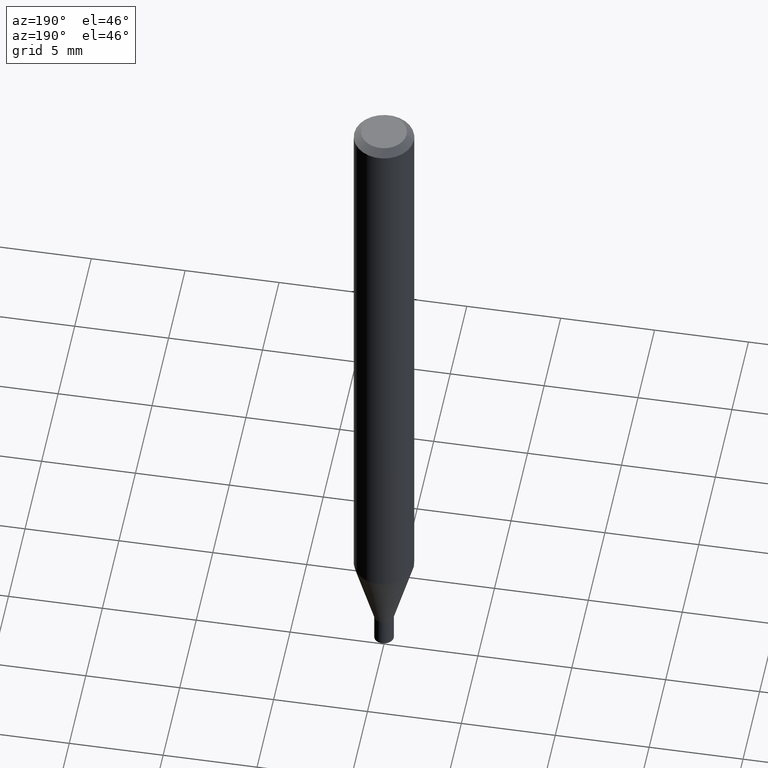
[diagram: clean part render]
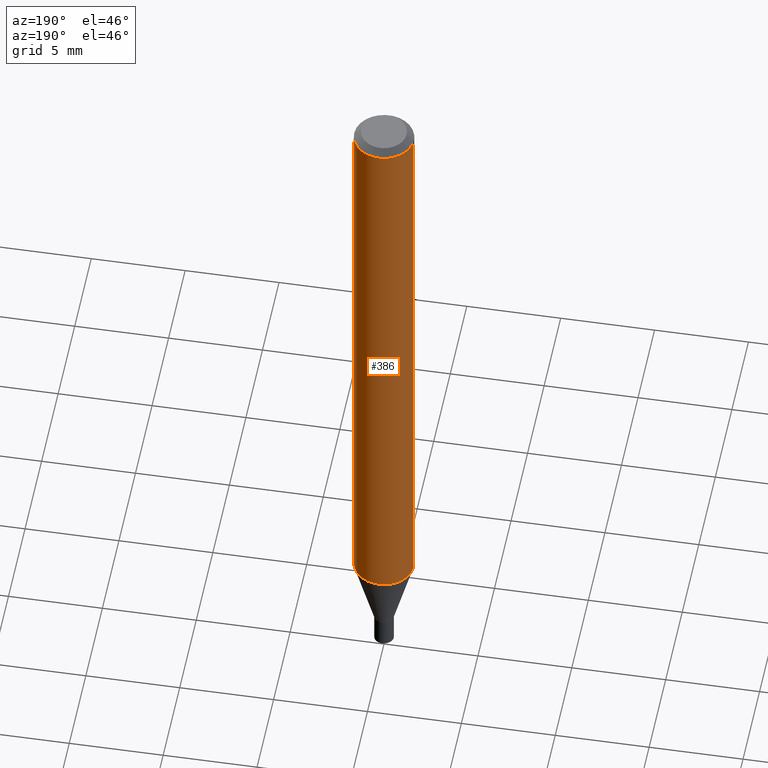
[diagram: same view with one face highlighted and labeled with its STEP entity id]
A machine part, auxiliary view. The second image highlights one B-rep face of the part: STEP entity #386.
In plain terms, the highlighted cylindrical surface (edge-blend (fillet) strip) has radius 1.5875 mm, axis along (-0, 0, 1).
Its self-contained STEP definition (entity closure, byte-faithful):
#5 = EDGE_CURVE ( 'NONE', #164, #210, #285, .T. ) ;
#7 = CARTESIAN_POINT ( 'NONE',  ( 0.06250000000000000000, -4.888073874380388472E-16, -0.01499999999999999944 ) ) ;
#14 = VECTOR ( 'NONE', #216, 39.37007874015748143 ) ;
#18 = VERTEX_POINT ( 'NONE', #46 ) ;
#28 = FACE_OUTER_BOUND ( 'NONE', #337, .T. ) ;
#44 = DIRECTION ( 'NONE',  ( 1.000000000000000000, -6.982962677686266711E-15, 0.000000000000000000 ) ) ;
#46 = CARTESIAN_POINT ( 'NONE',  ( -0.06250000000000000000, -1.819706752399126713E-15, -0.01499999999999999944 ) ) ;
#48 = AXIS2_PLACEMENT_3D ( 'NONE', #83, #261, #194 ) ;
#83 = CARTESIAN_POINT ( 'NONE',  ( 3.134489096710992229E-29, -4.475219704415731184E-15, -1.281753866082106397 ) ) ;
#110 = CYLINDRICAL_SURFACE ( 'NONE', #165, 0.06250000000000000000 ) ;
#116 = DIRECTION ( 'NONE',  ( -2.445468806185136597E-29, 3.491481338843145583E-15, 1.000000000000000000 ) ) ;
#128 = CARTESIAN_POINT ( 'NONE',  ( 0.06250000000000000000, -4.911654871771122854E-15, -1.281753866082106397 ) ) ;
#154 = EDGE_CURVE ( 'NONE', #164, #349, #431, .T. ) ;
#164 = VERTEX_POINT ( 'NONE', #128 ) ;
#165 = AXIS2_PLACEMENT_3D ( 'NONE', #358, #116, #361 ) ;
#175 = ORIENTED_EDGE ( 'NONE', *, *, #205, .F. ) ;
#184 = CARTESIAN_POINT ( 'NONE',  ( -0.06250000000000000000, 4.440892098500626162E-16, -3.074334431409316114E-30 ) ) ;
#194 = DIRECTION ( 'NONE',  ( 1.000000000000000000, -6.982962677686262766E-15, 0.000000000000000000 ) ) ;
#205 = EDGE_CURVE ( 'NONE', #210, #18, #307, .T. ) ;
#210 = VERTEX_POINT ( 'NONE', #7 ) ;
#216 = DIRECTION ( 'NONE',  ( -2.445468806185136877E-29, 3.491481338843145188E-15, 1.000000000000000000 ) ) ;
#222 = LINE ( 'NONE', #184, #14 ) ;
#231 = CARTESIAN_POINT ( 'NONE',  ( 3.668203209277705088E-31, -5.237222008264718399E-17, -0.01499999999999999944 ) ) ;
#261 = DIRECTION ( 'NONE',  ( -2.445468806185136597E-29, 3.491481338843145583E-15, 1.000000000000000000 ) ) ;
#269 = ORIENTED_EDGE ( 'NONE', *, *, #409, .T. ) ;
#285 = LINE ( 'NONE', #392, #330 ) ;
#294 = CARTESIAN_POINT ( 'NONE',  ( -0.06250000000000000000, -4.031130494565667779E-15, -1.281753866082106397 ) ) ;
#307 = CIRCLE ( 'NONE', #357, 0.06250000000000000000 ) ;
#311 = ORIENTED_EDGE ( 'NONE', *, *, #5, .F. ) ;
#330 = VECTOR ( 'NONE', #427, 39.37007874015748143 ) ;
#337 = EDGE_LOOP ( 'NONE', ( #390, #269, #175, #311 ) ) ;
#349 = VERTEX_POINT ( 'NONE', #294 ) ;
#357 = AXIS2_PLACEMENT_3D ( 'NONE', #231, #371, #44 ) ;
#358 = CARTESIAN_POINT ( 'NONE',  ( 0.000000000000000000, 0.000000000000000000, 0.000000000000000000 ) ) ;
#361 = DIRECTION ( 'NONE',  ( 1.000000000000000000, -6.982962677686266711E-15, 4.876176775795935793E-29 ) ) ;
#371 = DIRECTION ( 'NONE',  ( -2.445468806185136597E-29, 3.491481338843145583E-15, 1.000000000000000000 ) ) ;
#386 = ADVANCED_FACE ( 'NONE', ( #28 ), #110, .T. ) ;
#390 = ORIENTED_EDGE ( 'NONE', *, *, #154, .T. ) ;
#392 = CARTESIAN_POINT ( 'NONE',  ( 0.06250000000000000000, -4.364351673553916694E-16, 3.047610484872459871E-30 ) ) ;
#409 = EDGE_CURVE ( 'NONE', #349, #18, #222, .T. ) ;
#427 = DIRECTION ( 'NONE',  ( -2.445468806185136877E-29, 3.491481338843145188E-15, 1.000000000000000000 ) ) ;
#431 = CIRCLE ( 'NONE', #48, 0.06250000000000000000 ) ;